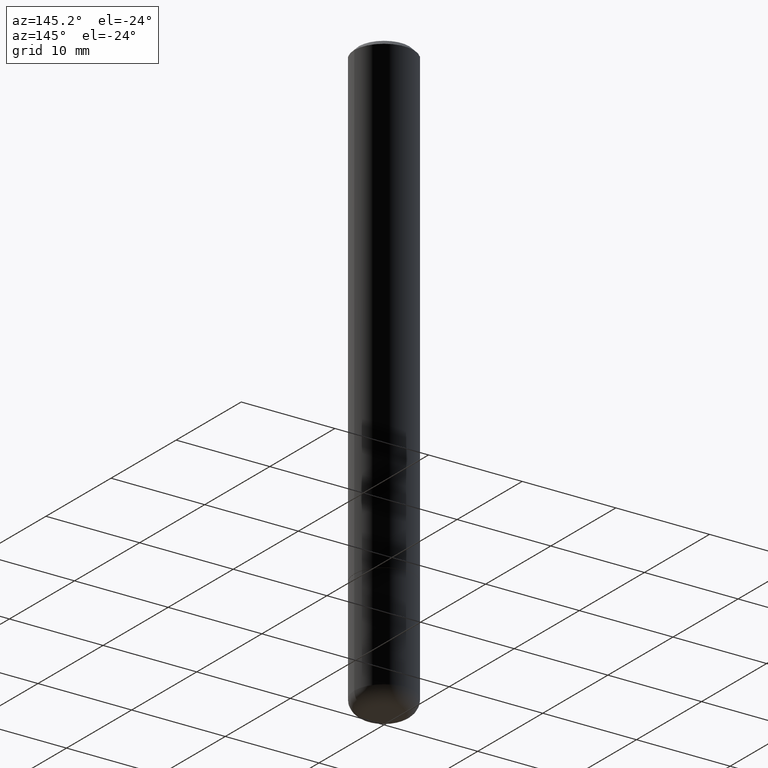
[diagram: clean part render]
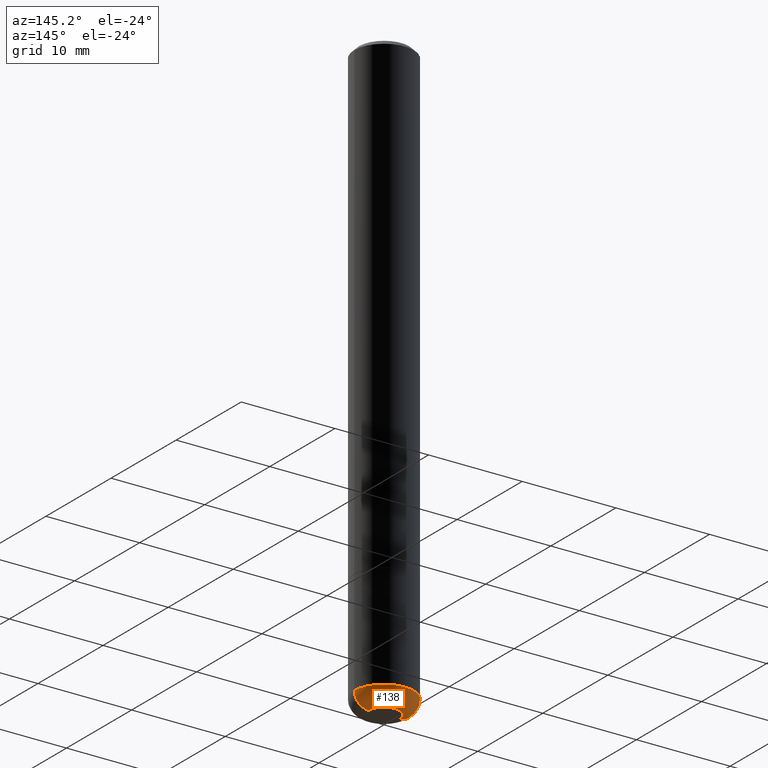
[diagram: same view with one face highlighted and labeled with its STEP entity id]
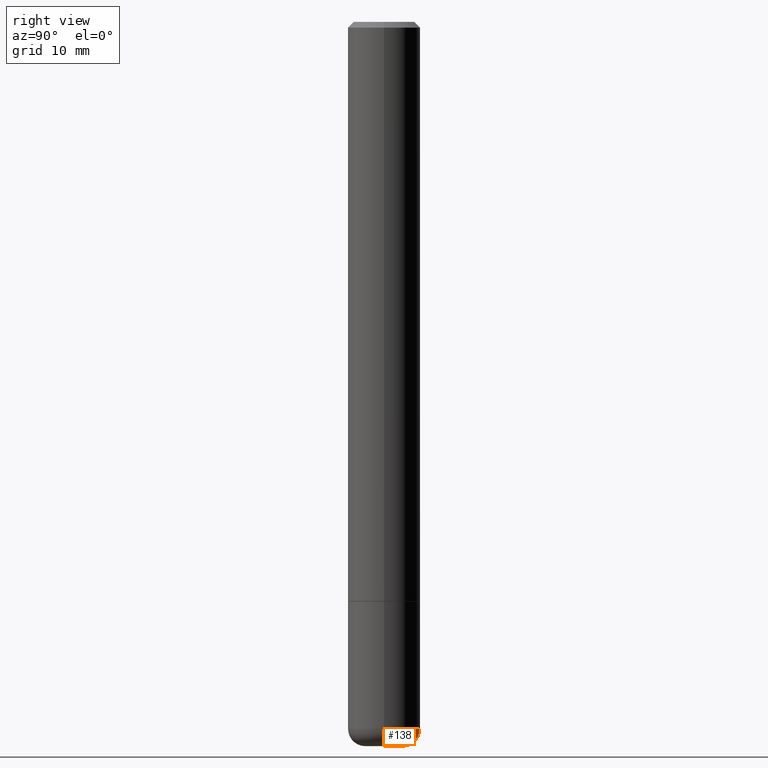
[diagram: same view with one face highlighted and labeled with its STEP entity id]
A machine part, auxiliary view. The second image highlights one B-rep face of the part: STEP entity #138.
A second angle (right view) of the same face is appended — the face is thin or edge-on in the first view.
In plain terms, the highlighted toroidal blend (fillet) surface has major radius 1.651 mm and minor (blend) radius 1.524 mm.
Its self-contained STEP definition (entity closure, byte-faithful):
#7 = EDGE_CURVE ( 'NONE', #42, #399, #375, .T. ) ;
#16 = AXIS2_PLACEMENT_3D ( 'NONE', #132, #261, #398 ) ;
#33 = AXIS2_PLACEMENT_3D ( 'NONE', #264, #103, #393 ) ;
#37 = CARTESIAN_POINT ( 'NONE',  ( 5.966943887091733341E-29, -8.519214466777275048E-15, -2.440000000000000391 ) ) ;
#42 = VERTEX_POINT ( 'NONE', #357 ) ;
#46 = CARTESIAN_POINT ( 'NONE',  ( 6.113672015462842613E-29, -8.728703347107866520E-15, -2.500000000000000444 ) ) ;
#48 = AXIS2_PLACEMENT_3D ( 'NONE', #308, #387, #278 ) ;
#58 = ORIENTED_EDGE ( 'NONE', *, *, #70, .T. ) ;
#70 = EDGE_CURVE ( 'NONE', #324, #42, #400, .T. ) ;
#95 = CARTESIAN_POINT ( 'NONE',  ( 0.06500000000000000222, -9.182595921157474803E-15, -2.500000000000000444 ) ) ;
#99 = AXIS2_PLACEMENT_3D ( 'NONE', #37, #191, #352 ) ;
#103 = DIRECTION ( 'NONE',  ( -2.445468806185136597E-29, 3.491481338843145583E-15, 1.000000000000000000 ) ) ;
#104 = VERTEX_POINT ( 'NONE', #164 ) ;
#130 = ORIENTED_EDGE ( 'NONE', *, *, #332, .F. ) ;
#132 = CARTESIAN_POINT ( 'NONE',  ( -0.06500000000000000222, -8.057361688533210306E-15, -2.440000000000000391 ) ) ;
#138 = ADVANCED_FACE ( 'NONE', ( #290 ), #208, .T. ) ;
#164 = CARTESIAN_POINT ( 'NONE',  ( 0.1250000000000001110, -9.392084801488058387E-15, -2.440000000000000391 ) ) ;
#168 = DIRECTION ( 'NONE',  ( -2.445468806185136597E-29, 3.491481338843145583E-15, 1.000000000000000000 ) ) ;
#170 = CIRCLE ( 'NONE', #48, 0.06000000000000024064 ) ;
#172 = CARTESIAN_POINT ( 'NONE',  ( -0.1250000000000001110, -7.631036047077149816E-15, -2.440000000000000391 ) ) ;
#191 = DIRECTION ( 'NONE',  ( -2.445468806185136597E-29, 3.491481338843145583E-15, 1.000000000000000000 ) ) ;
#195 = DIRECTION ( 'NONE',  ( 1.000000000000000000, -6.982962677686273810E-15, 0.000000000000000000 ) ) ;
#208 = TOROIDAL_SURFACE ( 'NONE', #33, 0.06500000000000000222, 0.06000000000000023370 ) ;
#237 = EDGE_LOOP ( 'NONE', ( #58, #289, #287, #130 ) ) ;
#246 = CIRCLE ( 'NONE', #99, 0.1250000000000000000 ) ;
#261 = DIRECTION ( 'NONE',  ( 7.105427357601001859E-15, 1.000000000000000000, -3.491481338843145583E-15 ) ) ;
#264 = CARTESIAN_POINT ( 'NONE',  ( 5.966943887091733341E-29, -8.519214466777275048E-15, -2.440000000000000391 ) ) ;
#278 = DIRECTION ( 'NONE',  ( 1.000000000000000000, -6.982962677686272233E-15, 0.000000000000000000 ) ) ;
#283 = EDGE_CURVE ( 'NONE', #104, #399, #246, .T. ) ;
#287 = ORIENTED_EDGE ( 'NONE', *, *, #283, .F. ) ;
#289 = ORIENTED_EDGE ( 'NONE', *, *, #7, .T. ) ;
#290 = FACE_OUTER_BOUND ( 'NONE', #237, .T. ) ;
#308 = CARTESIAN_POINT ( 'NONE',  ( 0.06500000000000000222, -8.973107040826881753E-15, -2.440000000000000391 ) ) ;
#324 = VERTEX_POINT ( 'NONE', #95 ) ;
#332 = EDGE_CURVE ( 'NONE', #324, #104, #170, .T. ) ;
#352 = DIRECTION ( 'NONE',  ( 1.000000000000000000, -6.982962677686262766E-15, 0.000000000000000000 ) ) ;
#357 = CARTESIAN_POINT ( 'NONE',  ( -0.06500000000000000222, -7.948943307970475008E-15, -2.500000000000000444 ) ) ;
#361 = AXIS2_PLACEMENT_3D ( 'NONE', #46, #168, #195 ) ;
#375 = CIRCLE ( 'NONE', #16, 0.06000000000000024064 ) ;
#387 = DIRECTION ( 'NONE',  ( -6.982962677686266711E-15, -1.000000000000000000, 3.491481338843145583E-15 ) ) ;
#393 = DIRECTION ( 'NONE',  ( 1.000000000000000000, -6.982962677686265133E-15, 4.883557194083112340E-29 ) ) ;
#398 = DIRECTION ( 'NONE',  ( -1.000000000000000000, 7.105427357600994759E-15, 0.000000000000000000 ) ) ;
#399 = VERTEX_POINT ( 'NONE', #172 ) ;
#400 = CIRCLE ( 'NONE', #361, 0.06500000000000000222 ) ;